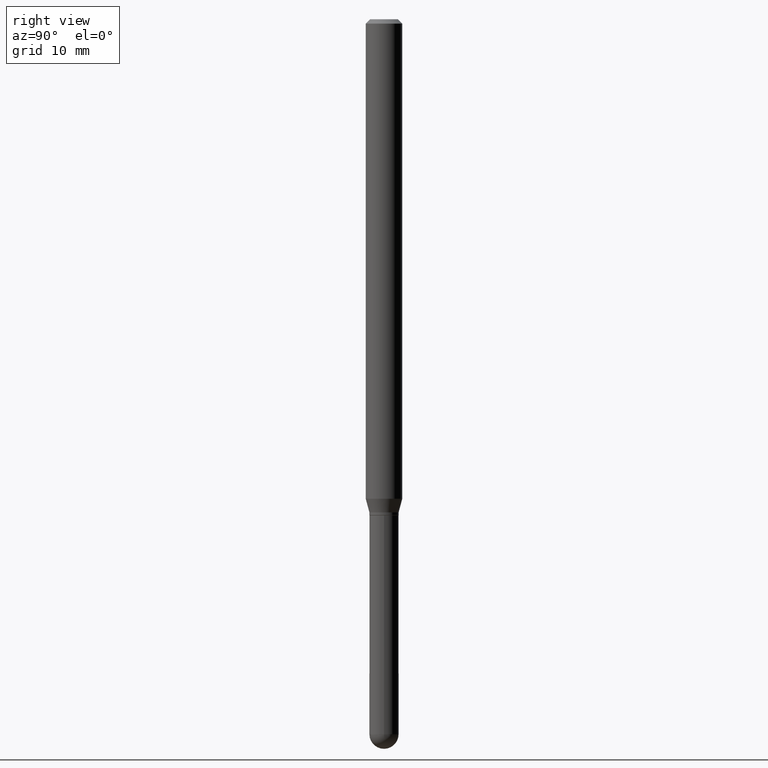
[diagram: clean part render]
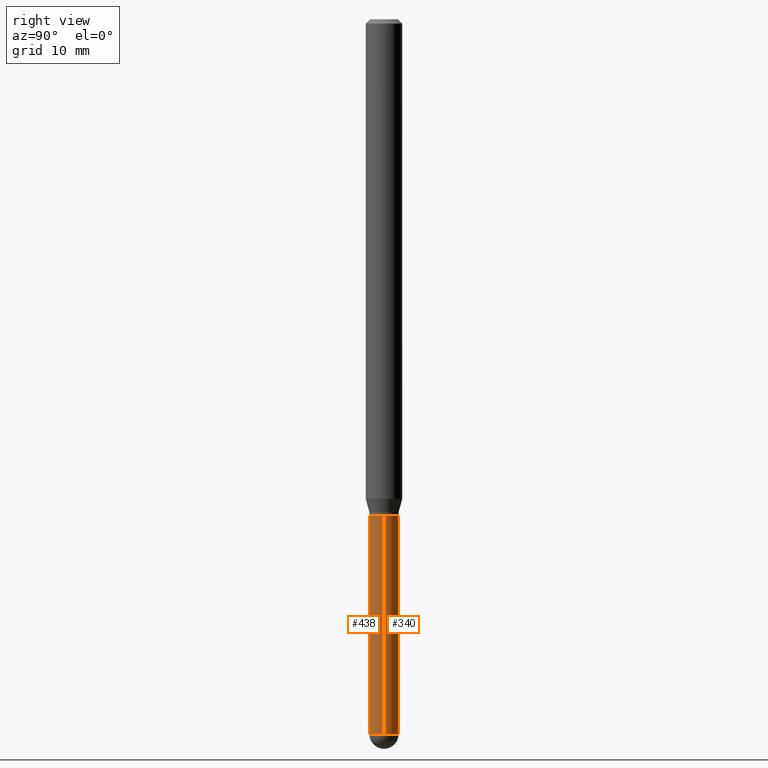
[diagram: same view with one multi-face feature highlighted, each face labeled with its STEP entity id]
A machine part, right view. The highlighted faces form ONE feature: a constant-radius fillet chain: 2 tangent blend faces with common blend radius 1.27 mm. The faces share edges in the B-rep.
Their STEP definitions:
[1] entity #340 (Cylinder):
#17 = VERTEX_POINT ( 'NONE', #415 ) ;
#22 = CIRCLE ( 'NONE', #509, 0.04999999999999999584 ) ;
#23 = VERTEX_POINT ( 'NONE', #326 ) ;
#36 = ORIENTED_EDGE ( 'NONE', *, *, #200, .F. ) ;
#37 = DIRECTION ( 'NONE',  ( -2.445468806185136597E-29, 3.491481338843145583E-15, 1.000000000000000000 ) ) ;
#44 = CARTESIAN_POINT ( 'NONE',  ( 3.491481338843722536E-16, 0.04999999999999130834, -2.450000000000000178 ) ) ;
#51 = DIRECTION ( 'NONE',  ( -2.445468806185136597E-29, 3.491481338843145583E-15, 1.000000000000000000 ) ) ;
#52 = DIRECTION ( 'NONE',  ( 1.000000000000000000, -6.982962677686274599E-15, 0.000000000000000000 ) ) ;
#55 = EDGE_CURVE ( 'NONE', #132, #23, #414, .T. ) ;
#64 = CARTESIAN_POINT ( 'NONE',  ( 0.04999999999999999584, -3.491481338843132862E-16, 2.438088387897967896E-30 ) ) ;
#73 = VECTOR ( 'NONE', #419, 39.37007874015748143 ) ;
#90 = CARTESIAN_POINT ( 'NONE',  ( 4.157296970514732439E-29, -5.935518276033348003E-15, -1.700000000000000178 ) ) ;
#132 = VERTEX_POINT ( 'NONE', #463 ) ;
#155 = DIRECTION ( 'NONE',  ( 1.000000000000000000, -6.982962677686265922E-15, 4.876176775795936353E-29 ) ) ;
#175 = CIRCLE ( 'NONE', #335, 0.04999999999999999584 ) ;
#181 = DIRECTION ( 'NONE',  ( -2.445468806185136877E-29, 3.491481338843145188E-15, 1.000000000000000000 ) ) ;
#190 = ORIENTED_EDGE ( 'NONE', *, *, #55, .F. ) ;
#197 = VERTEX_POINT ( 'NONE', #220 ) ;
#200 = EDGE_CURVE ( 'NONE', #197, #132, #344, .T. ) ;
#201 = DIRECTION ( 'NONE',  ( -2.445468806185136597E-29, 3.491481338843145583E-15, 1.000000000000000000 ) ) ;
#204 = CARTESIAN_POINT ( 'NONE',  ( 5.991398575153583765E-29, -8.554129280165706697E-15, -2.449999999999999734 ) ) ;
#220 = CARTESIAN_POINT ( 'NONE',  ( 0.04999999999999999584, -7.593971911983840291E-15, -2.449999999999999734 ) ) ;
#238 = ORIENTED_EDGE ( 'NONE', *, *, #281, .T. ) ;
#251 = AXIS2_PLACEMENT_3D ( 'NONE', #90, #201, #52 ) ;
#275 = ORIENTED_EDGE ( 'NONE', *, *, #454, .T. ) ;
#281 = EDGE_CURVE ( 'NONE', #17, #23, #299, .T. ) ;
#283 = EDGE_LOOP ( 'NONE', ( #275, #238, #190, #36, #357 ) ) ;
#299 = LINE ( 'NONE', #462, #73 ) ;
#301 = VECTOR ( 'NONE', #181, 39.37007874015748143 ) ;
#313 = VERTEX_POINT ( 'NONE', #44 ) ;
#326 = CARTESIAN_POINT ( 'NONE',  ( -0.05000000000000000278, -6.889552410219476547E-15, -1.700000000000000178 ) ) ;
#335 = AXIS2_PLACEMENT_3D ( 'NONE', #395, #37, #431 ) ;
#340 = ADVANCED_FACE ( 'NONE', ( #469 ), #468, .T. ) ;
#344 = LINE ( 'NONE', #64, #301 ) ;
#357 = ORIENTED_EDGE ( 'NONE', *, *, #401, .T. ) ;
#360 = DIRECTION ( 'NONE',  ( -2.445468806185136597E-29, 3.491481338843145583E-15, 1.000000000000000000 ) ) ;
#395 = CARTESIAN_POINT ( 'NONE',  ( 5.991398575153583765E-29, -8.554129280165706697E-15, -2.449999999999999734 ) ) ;
#399 = CARTESIAN_POINT ( 'NONE',  ( 0.000000000000000000, 0.000000000000000000, 0.000000000000000000 ) ) ;
#401 = EDGE_CURVE ( 'NONE', #197, #313, #175, .T. ) ;
#413 = DIRECTION ( 'NONE',  ( 1.000000000000000000, -6.982962677686255667E-15, 0.000000000000000000 ) ) ;
#414 = CIRCLE ( 'NONE', #251, 0.05000000000000000278 ) ;
#415 = CARTESIAN_POINT ( 'NONE',  ( -0.04999999999999999584, -6.889552410219476547E-15, -2.449999999999999734 ) ) ;
#419 = DIRECTION ( 'NONE',  ( -2.445468806185136877E-29, 3.491481338843145188E-15, 1.000000000000000000 ) ) ;
#431 = DIRECTION ( 'NONE',  ( 1.000000000000000000, -6.982962677686255667E-15, 0.000000000000000000 ) ) ;
#454 = EDGE_CURVE ( 'NONE', #313, #17, #22, .T. ) ;
#462 = CARTESIAN_POINT ( 'NONE',  ( -0.04999999999999999584, 3.552713678800500634E-16, -2.459467545127452961E-30 ) ) ;
#463 = CARTESIAN_POINT ( 'NONE',  ( 0.05000000000000000278, -6.284666409917661339E-15, -1.700000000000000178 ) ) ;
#468 = CYLINDRICAL_SURFACE ( 'NONE', #491, 0.04999999999999999584 ) ;
#469 = FACE_OUTER_BOUND ( 'NONE', #283, .T. ) ;
#491 = AXIS2_PLACEMENT_3D ( 'NONE', #399, #360, #155 ) ;
#509 = AXIS2_PLACEMENT_3D ( 'NONE', #204, #51, #413 ) ;
[2] entity #438 (Cylinder):
#17 = VERTEX_POINT ( 'NONE', #415 ) ;
#23 = VERTEX_POINT ( 'NONE', #326 ) ;
#26 = CARTESIAN_POINT ( 'NONE',  ( 4.157296970514732439E-29, -5.935518276033348003E-15, -1.700000000000000178 ) ) ;
#58 = AXIS2_PLACEMENT_3D ( 'NONE', #478, #229, #227 ) ;
#64 = CARTESIAN_POINT ( 'NONE',  ( 0.04999999999999999584, -3.491481338843132862E-16, 2.438088387897967896E-30 ) ) ;
#73 = VECTOR ( 'NONE', #419, 39.37007874015748143 ) ;
#77 = ORIENTED_EDGE ( 'NONE', *, *, #281, .F. ) ;
#81 = EDGE_CURVE ( 'NONE', #307, #197, #450, .T. ) ;
#85 = ORIENTED_EDGE ( 'NONE', *, *, #200, .T. ) ;
#89 = FACE_OUTER_BOUND ( 'NONE', #412, .T. ) ;
#125 = DIRECTION ( 'NONE',  ( -2.445468806185136597E-29, 3.491481338843145583E-15, 1.000000000000000000 ) ) ;
#132 = VERTEX_POINT ( 'NONE', #463 ) ;
#144 = AXIS2_PLACEMENT_3D ( 'NONE', #26, #298, #173 ) ;
#146 = DIRECTION ( 'NONE',  ( 1.000000000000000000, -6.982962677686255667E-15, 0.000000000000000000 ) ) ;
#168 = AXIS2_PLACEMENT_3D ( 'NONE', #391, #467, #146 ) ;
#173 = DIRECTION ( 'NONE',  ( 1.000000000000000000, -6.982962677686274599E-15, 0.000000000000000000 ) ) ;
#181 = DIRECTION ( 'NONE',  ( -2.445468806185136877E-29, 3.491481338843145188E-15, 1.000000000000000000 ) ) ;
#192 = ORIENTED_EDGE ( 'NONE', *, *, #221, .F. ) ;
#197 = VERTEX_POINT ( 'NONE', #220 ) ;
#200 = EDGE_CURVE ( 'NONE', #197, #132, #344, .T. ) ;
#209 = CIRCLE ( 'NONE', #58, 0.04999999999999999584 ) ;
#210 = CYLINDRICAL_SURFACE ( 'NONE', #253, 0.04999999999999999584 ) ;
#220 = CARTESIAN_POINT ( 'NONE',  ( 0.04999999999999999584, -7.593971911983840291E-15, -2.449999999999999734 ) ) ;
#221 = EDGE_CURVE ( 'NONE', #23, #132, #371, .T. ) ;
#227 = DIRECTION ( 'NONE',  ( 1.000000000000000000, -6.982962677686255667E-15, 0.000000000000000000 ) ) ;
#229 = DIRECTION ( 'NONE',  ( -2.445468806185136597E-29, 3.491481338843145583E-15, 1.000000000000000000 ) ) ;
#253 = AXIS2_PLACEMENT_3D ( 'NONE', #374, #125, #411 ) ;
#281 = EDGE_CURVE ( 'NONE', #17, #23, #299, .T. ) ;
#298 = DIRECTION ( 'NONE',  ( -2.445468806185136597E-29, 3.491481338843145583E-15, 1.000000000000000000 ) ) ;
#299 = LINE ( 'NONE', #462, #73 ) ;
#301 = VECTOR ( 'NONE', #181, 39.37007874015748143 ) ;
#307 = VERTEX_POINT ( 'NONE', #312 ) ;
#312 = CARTESIAN_POINT ( 'NONE',  ( -3.552713678799891732E-16, -0.05000000000000843353, -2.449999999999999734 ) ) ;
#326 = CARTESIAN_POINT ( 'NONE',  ( -0.05000000000000000278, -6.889552410219476547E-15, -1.700000000000000178 ) ) ;
#344 = LINE ( 'NONE', #64, #301 ) ;
#371 = CIRCLE ( 'NONE', #144, 0.05000000000000000278 ) ;
#374 = CARTESIAN_POINT ( 'NONE',  ( 0.000000000000000000, 0.000000000000000000, 0.000000000000000000 ) ) ;
#381 = EDGE_CURVE ( 'NONE', #17, #307, #209, .T. ) ;
#391 = CARTESIAN_POINT ( 'NONE',  ( 5.991398575153583765E-29, -8.554129280165706697E-15, -2.449999999999999734 ) ) ;
#411 = DIRECTION ( 'NONE',  ( 1.000000000000000000, -6.982962677686265922E-15, 4.876176775795936353E-29 ) ) ;
#412 = EDGE_LOOP ( 'NONE', ( #77, #494, #437, #85, #192 ) ) ;
#415 = CARTESIAN_POINT ( 'NONE',  ( -0.04999999999999999584, -6.889552410219476547E-15, -2.449999999999999734 ) ) ;
#419 = DIRECTION ( 'NONE',  ( -2.445468806185136877E-29, 3.491481338843145188E-15, 1.000000000000000000 ) ) ;
#437 = ORIENTED_EDGE ( 'NONE', *, *, #81, .T. ) ;
#438 = ADVANCED_FACE ( 'NONE', ( #89 ), #210, .T. ) ;
#450 = CIRCLE ( 'NONE', #168, 0.04999999999999999584 ) ;
#462 = CARTESIAN_POINT ( 'NONE',  ( -0.04999999999999999584, 3.552713678800500634E-16, -2.459467545127452961E-30 ) ) ;
#463 = CARTESIAN_POINT ( 'NONE',  ( 0.05000000000000000278, -6.284666409917661339E-15, -1.700000000000000178 ) ) ;
#467 = DIRECTION ( 'NONE',  ( -2.445468806185136597E-29, 3.491481338843145583E-15, 1.000000000000000000 ) ) ;
#478 = CARTESIAN_POINT ( 'NONE',  ( 5.991398575153583765E-29, -8.554129280165706697E-15, -2.449999999999999734 ) ) ;
#494 = ORIENTED_EDGE ( 'NONE', *, *, #381, .T. ) ;